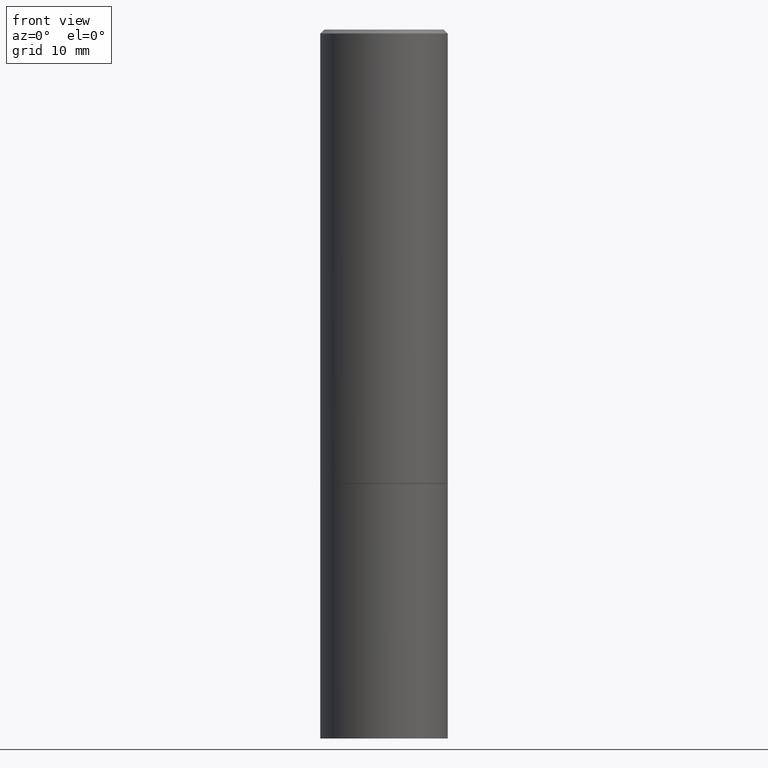
[diagram: clean part render]
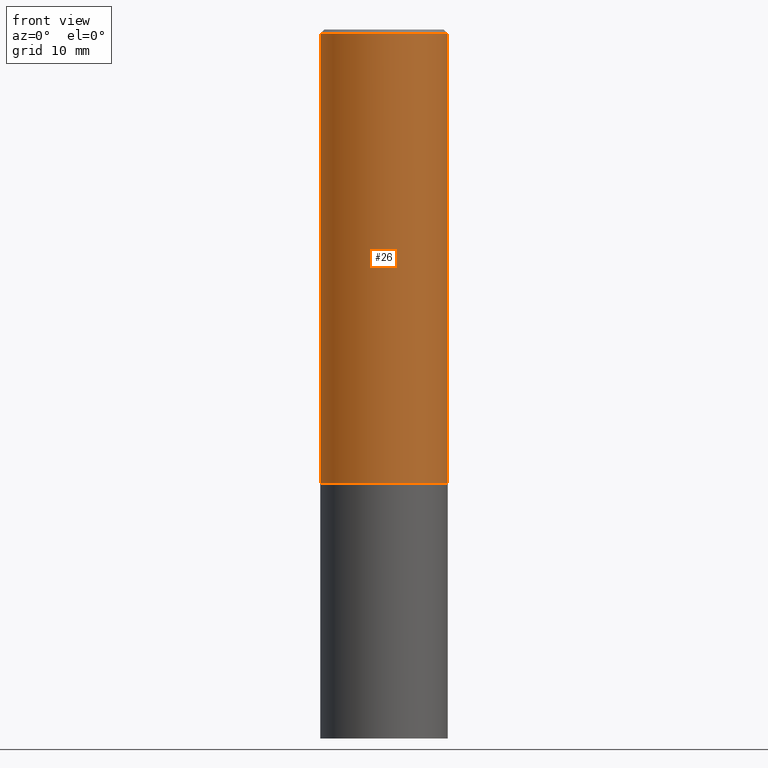
[diagram: same view with one face highlighted and labeled with its STEP entity id]
A machine part, front view. The second image highlights one B-rep face of the part: STEP entity #26.
In plain terms, the highlighted cylindrical surface (partial cylindrical patch) has radius 7.9997 mm, axis along (-0, 0, 1).
Its self-contained STEP definition (entity closure, byte-faithful):
#1 = CARTESIAN_POINT ( 'NONE',  ( 4.890937612370290675E-31, -6.982962677686316261E-17, -0.02000000000000007327 ) ) ;
#2 = CIRCLE ( 'NONE', #277, 0.3149500000000000077 ) ;
#11 = EDGE_CURVE ( 'NONE', #336, #224, #328, .T. ) ;
#18 = EDGE_CURVE ( 'NONE', #300, #224, #319, .T. ) ;
#26 = ADVANCED_FACE ( 'NONE', ( #207 ), #68, .T. ) ;
#29 = ORIENTED_EDGE ( 'NONE', *, *, #11, .F. ) ;
#45 = DIRECTION ( 'NONE',  ( 1.000000000000000000, -6.982962677686266711E-15, 0.000000000000000000 ) ) ;
#49 = EDGE_LOOP ( 'NONE', ( #304, #109, #195, #29 ) ) ;
#57 = AXIS2_PLACEMENT_3D ( 'NONE', #1, #112, #316 ) ;
#68 = CYLINDRICAL_SURFACE ( 'NONE', #163, 0.3149499999999998967 ) ;
#69 = DIRECTION ( 'NONE',  ( -2.445468806185136877E-29, 3.491481338843145188E-15, 1.000000000000000000 ) ) ;
#76 = CARTESIAN_POINT ( 'NONE',  ( 0.3149500000000000077, -1.003102588649634920E-14, -2.243099999999999650 ) ) ;
#82 = DIRECTION ( 'NONE',  ( -2.445468806185136877E-29, 3.491481338843145188E-15, 1.000000000000000000 ) ) ;
#97 = CARTESIAN_POINT ( 'NONE',  ( -0.3149499999999998967, 2.237854346276434801E-15, -1.549218606675782116E-29 ) ) ;
#109 = ORIENTED_EDGE ( 'NONE', *, *, #271, .T. ) ;
#112 = DIRECTION ( 'NONE',  ( -2.445468806185136597E-29, 3.491481338843145583E-15, 1.000000000000000000 ) ) ;
#122 = CARTESIAN_POINT ( 'NONE',  ( 0.000000000000000000, 0.000000000000000000, 0.000000000000000000 ) ) ;
#163 = AXIS2_PLACEMENT_3D ( 'NONE', #122, #202, #174 ) ;
#174 = DIRECTION ( 'NONE',  ( 1.000000000000000000, -6.982962677686265922E-15, 4.876176775795935232E-29 ) ) ;
#180 = CARTESIAN_POINT ( 'NONE',  ( -0.3149500000000000077, -1.712931362691523950E-15, -2.243099999999999650 ) ) ;
#195 = ORIENTED_EDGE ( 'NONE', *, *, #18, .T. ) ;
#202 = DIRECTION ( 'NONE',  ( -2.445468806185136597E-29, 3.491481338843145583E-15, 1.000000000000000000 ) ) ;
#207 = FACE_OUTER_BOUND ( 'NONE', #49, .T. ) ;
#216 = CARTESIAN_POINT ( 'NONE',  ( -0.3149499999999997302, 2.129454468560424601E-15, -0.02000000000000007327 ) ) ;
#222 = VERTEX_POINT ( 'NONE', #180 ) ;
#224 = VERTEX_POINT ( 'NONE', #293 ) ;
#228 = CARTESIAN_POINT ( 'NONE',  ( 0.3149499999999998967, -2.199284095337288688E-15, 1.535751875536929289E-29 ) ) ;
#260 = VECTOR ( 'NONE', #69, 39.37007874015748143 ) ;
#266 = CARTESIAN_POINT ( 'NONE',  ( 5.485431079153879149E-29, -7.831741791159059333E-15, -2.243099999999999650 ) ) ;
#271 = EDGE_CURVE ( 'NONE', #222, #300, #2, .T. ) ;
#277 = AXIS2_PLACEMENT_3D ( 'NONE', #266, #330, #45 ) ;
#293 = CARTESIAN_POINT ( 'NONE',  ( 0.3149499999999997302, -2.230543471175005478E-15, -0.02000000000000007327 ) ) ;
#300 = VERTEX_POINT ( 'NONE', #76 ) ;
#304 = ORIENTED_EDGE ( 'NONE', *, *, #323, .F. ) ;
#316 = DIRECTION ( 'NONE',  ( 1.000000000000000000, -6.982962677686266711E-15, 0.000000000000000000 ) ) ;
#319 = LINE ( 'NONE', #228, #260 ) ;
#323 = EDGE_CURVE ( 'NONE', #222, #336, #353, .T. ) ;
#328 = CIRCLE ( 'NONE', #57, 0.3149499999999997302 ) ;
#330 = DIRECTION ( 'NONE',  ( -2.445468806185136597E-29, 3.491481338843145583E-15, 1.000000000000000000 ) ) ;
#336 = VERTEX_POINT ( 'NONE', #216 ) ;
#340 = VECTOR ( 'NONE', #82, 39.37007874015748143 ) ;
#353 = LINE ( 'NONE', #97, #340 ) ;